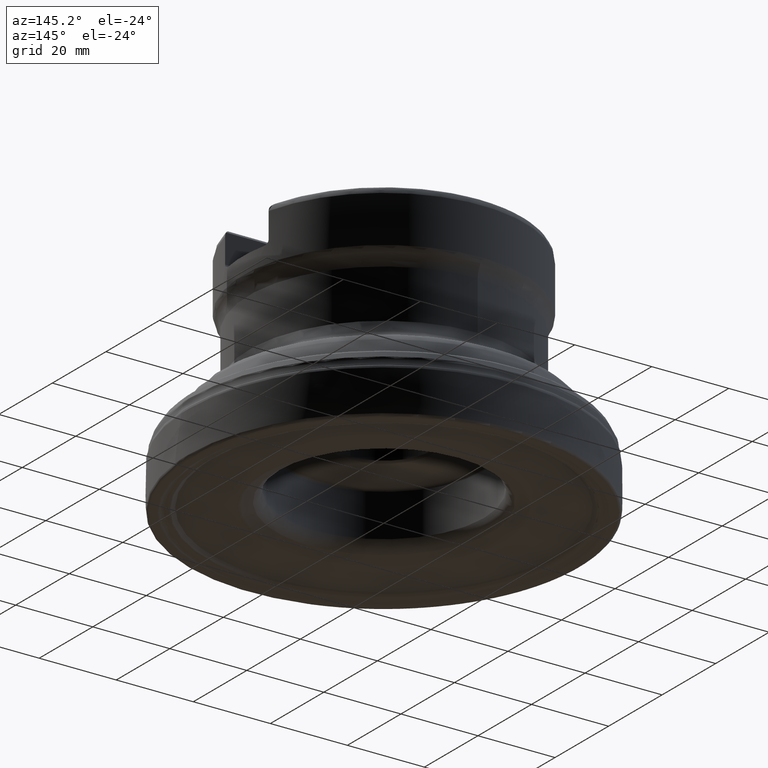
[diagram: clean part render]
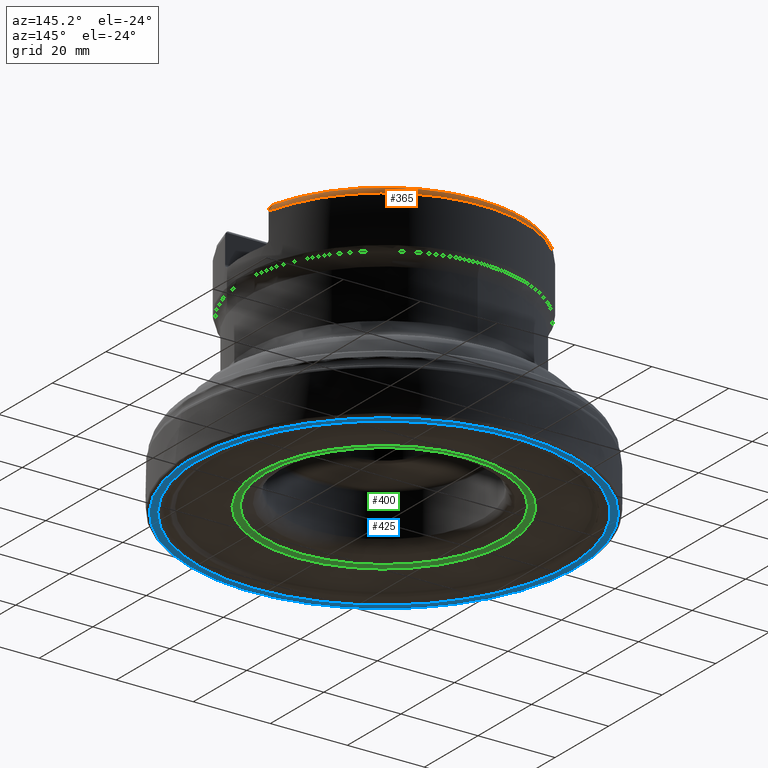
[diagram: same view with three faces highlighted in distinct colors, each labeled with its STEP entity id]
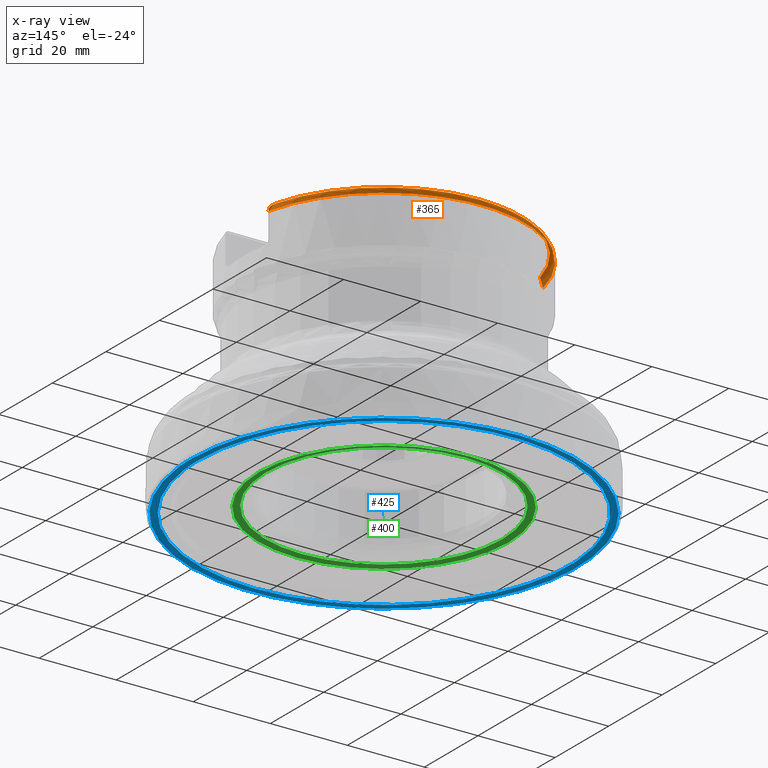
[diagram: x-ray of the same camera — body ghosted, the three highlighted faces saturated]
A machine part, auxiliary view with three faces highlighted in distinct colors.
The next image is the same camera in x-ray (body ghosted, the three faces saturated) — at least one of them is partly hidden behind the body in this view.
Their STEP definitions:

[orange] entity #365 — the highlighted toroidal blend (fillet) surface has major radius 34.5 mm and minor (blend) radius 2 mm.
#283=TOROIDAL_SURFACE('',#1181,34.5,2.);
#299=CIRCLE('',#1179,35.3717797887081);
#300=CIRCLE('',#1180,36.5);
#365=ADVANCED_FACE('',(#457),#283,.T.);
#457=FACE_OUTER_BOUND('',#479,.T.);
#479=EDGE_LOOP('',(#685,#686,#687,#688,#689,#690));
#685=ORIENTED_EDGE('',*,*,#1017,.T.);
#686=ORIENTED_EDGE('',*,*,#1018,.T.);
#687=ORIENTED_EDGE('',*,*,#1003,.F.);
#688=ORIENTED_EDGE('',*,*,#1019,.F.);
#689=ORIENTED_EDGE('',*,*,#1012,.F.);
#690=ORIENTED_EDGE('',*,*,#1020,.T.);
#907=VERTEX_POINT('',#1910);
#908=VERTEX_POINT('',#1911);
#916=VERTEX_POINT('',#1940);
#917=VERTEX_POINT('',#1948);
#921=VERTEX_POINT('',#1964);
#922=VERTEX_POINT('',#1965);
#1003=EDGE_CURVE('',#907,#908,#1134,.T.);
#1012=EDGE_CURVE('',#916,#917,#1138,.T.);
#1017=EDGE_CURVE('',#921,#922,#299,.T.);
#1018=EDGE_CURVE('',#922,#908,#1140,.T.);
#1019=EDGE_CURVE('',#917,#907,#300,.T.);
#1020=EDGE_CURVE('',#916,#921,#1141,.T.);
#1134=B_SPLINE_CURVE_WITH_KNOTS('',3,(#1903,#1904,#1905,#1906,#1907,#1908,
#1909),.UNSPECIFIED.,.F.,.F.,(4,3,4),(0.,0.630576899160705,1.),
 .UNSPECIFIED.);
#1138=B_SPLINE_CURVE_WITH_KNOTS('',3,(#1941,#1942,#1943,#1944,#1945,#1946,
#1947),.UNSPECIFIED.,.F.,.F.,(4,3,4),(0.,0.629880144461632,1.),
 .UNSPECIFIED.);
#1140=B_SPLINE_CURVE_WITH_KNOTS('',3,(#1966,#1967,#1968,#1969,#1970,#1971,
#1972),.UNSPECIFIED.,.F.,.F.,(4,3,4),(0.,0.64793426002431,1.),
 .UNSPECIFIED.);
#1141=B_SPLINE_CURVE_WITH_KNOTS('',3,(#1974,#1975,#1976,#1977,#1978,#1979,
#1980),.UNSPECIFIED.,.F.,.F.,(4,3,4),(0.,0.642020424361028,1.),
 .UNSPECIFIED.);
#1179=AXIS2_PLACEMENT_3D('',#1963,#1317,#1318);
#1180=AXIS2_PLACEMENT_3D('',#1973,#1319,#1320);
#1181=AXIS2_PLACEMENT_3D('',#1981,#1321,#1322);
#1317=DIRECTION('',(0.,-1.17145536458252E-15,-1.));
#1318=DIRECTION('',(0.,-1.,1.17702201224079E-15));
#1319=DIRECTION('',(0.,-1.17145536458252E-15,-1.));
#1320=DIRECTION('',(0.,-1.,1.14064009379297E-15));
#1321=DIRECTION('',(0.,1.17145536458252E-15,1.));
#1322=DIRECTION('',(0.,-1.,1.14064009379297E-15));
#1903=CARTESIAN_POINT('',(35.5807588451961,8.1400000000001,58.525));
#1904=CARTESIAN_POINT('',(35.5807588451961,8.1400000000001,58.7446019272531));
#1905=CARTESIAN_POINT('',(35.5425503138658,8.14000000000007,58.9672294953716));
#1906=CARTESIAN_POINT('',(35.4695986997269,8.14000000000007,59.1743600543141));
#1907=CARTESIAN_POINT('',(35.4267452303619,8.14000000000007,59.2960333464951));
#1908=CARTESIAN_POINT('',(35.371590119254,8.14000000000007,59.4140183509765));
#1909=CARTESIAN_POINT('',(35.3058338766041,8.14000000000007,59.5249999999972));
#1910=CARTESIAN_POINT('',(35.5807588451961,8.1400000000001,58.525));
#1911=CARTESIAN_POINT('',(35.3058338766041,8.14000000000007,59.5249999999972));
#1940=CARTESIAN_POINT('',(-35.3058338766025,8.14000000000007,59.525));
#1941=CARTESIAN_POINT('',(-35.3058338766025,8.14000000000007,59.525));
#1942=CARTESIAN_POINT('',(-35.4173503525129,8.14000000000007,59.3367854382988));
#1943=CARTESIAN_POINT('',(-35.4984084155812,8.14000000000007,59.12700934786));
#1944=CARTESIAN_POINT('',(-35.5418608339785,8.14000000000007,58.9125972843671));
#1945=CARTESIAN_POINT('',(-35.5676513600941,8.14000000000007,58.7853362451212));
#1946=CARTESIAN_POINT('',(-35.5807588451961,8.1400000000001,58.6548480779499));
#1947=CARTESIAN_POINT('',(-35.5807588451961,8.1400000000001,58.525));
#1948=CARTESIAN_POINT('',(-35.5807588451961,8.1400000000001,58.525));
#1963=CARTESIAN_POINT('',(0.,7.06680448684408E-14,60.325));
#1964=CARTESIAN_POINT('',(-34.2233722099512,8.94000000000007,60.325));
#1965=CARTESIAN_POINT('',(34.2233722099512,8.94000000000007,60.325));
#1966=CARTESIAN_POINT('',(34.2233722099512,8.94000000000007,60.325));
#1967=CARTESIAN_POINT('',(34.5154978725264,8.81803967293066,60.2030396729306));
#1968=CARTESIAN_POINT('',(34.7740297591576,8.65129117927731,60.0362911792772));
#1969=CARTESIAN_POINT('',(34.9883185967255,8.46532567227869,59.8503256722786));
#1970=CARTESIAN_POINT('',(35.1060208297466,8.363180569029,59.7481805690289));
#1971=CARTESIAN_POINT('',(35.2121064972438,8.25387764980934,59.6388776498065));
#1972=CARTESIAN_POINT('',(35.3058338766041,8.14000000000007,59.5249999999972));
#1973=CARTESIAN_POINT('',(0.,6.85594252121922E-14,58.525));
#1974=CARTESIAN_POINT('',(-35.3058338766025,8.14000000000007,59.525));
#1975=CARTESIAN_POINT('',(-35.1364130463715,8.34584429125276,59.7308442912527));
#1976=CARTESIAN_POINT('',(-34.9252281831583,8.53819443305015,59.9231944330501));
#1977=CARTESIAN_POINT('',(-34.6775118337811,8.69956941941736,60.0845694194173));
#1978=CARTESIAN_POINT('',(-34.5384308487862,8.79017382285667,60.1751738228566));
#1979=CARTESIAN_POINT('',(-34.386214905154,8.87201436603445,60.2570143660344));
#1980=CARTESIAN_POINT('',(-34.2233722099512,8.94000000000007,60.325));
#1981=CARTESIAN_POINT('',(0.,6.85594252121922E-14,58.525));

[blue] entity #425 — the highlighted face is a SurfaceOfRevolution surface.
#122=SURFACE_OF_REVOLUTION('',#628,#143);
#143=AXIS1_PLACEMENT('',#2393,#1547);
#261=FACE_BOUND('',#581,.T.);
#262=FACE_BOUND('',#582,.T.);
#352=CIRCLE('',#1282,48.2339384708555);
#353=CIRCLE('',#1283,50.0156585290299);
#425=ADVANCED_FACE('',(#261,#262),#122,.F.);
#581=EDGE_LOOP('',(#871));
#582=EDGE_LOOP('',(#872));
#628=LINE('',#2392,#655);
#655=VECTOR('',#1546,1.79261885988343);
#871=ORIENTED_EDGE('',*,*,#1096,.T.);
#872=ORIENTED_EDGE('',*,*,#1097,.F.);
#978=VERTEX_POINT('',#2383);
#979=VERTEX_POINT('',#2391);
#1096=EDGE_CURVE('',#978,#978,#352,.T.);
#1097=EDGE_CURVE('',#979,#979,#353,.T.);
#1282=AXIS2_PLACEMENT_3D('',#2382,#1541,#1542);
#1283=AXIS2_PLACEMENT_3D('',#2390,#1544,#1545);
#1541=DIRECTION('',(0.,0.,1.));
#1542=DIRECTION('',(1.,0.,0.));
#1544=DIRECTION('',(0.,0.,1.));
#1545=DIRECTION('',(1.,0.,0.));
#1546=DIRECTION('',(-0.999593469128227,0.00345161899845267,0.0283016395723834));
#1547=DIRECTION('',(0.,0.,1.));
#2382=CARTESIAN_POINT('',(0.,0.,0.0507340372776542));
#2383=CARTESIAN_POINT('',(48.2339384708555,0.,0.0507340372776542));
#2390=CARTESIAN_POINT('',(0.,0.,-2.68862827187537E-9));
#2391=CARTESIAN_POINT('',(50.0156585290299,0.,-2.68862827187537E-9));
#2392=CARTESIAN_POINT('',(49.7232953241602,-5.40000001841361,-2.68862827187537E-9));
#2393=CARTESIAN_POINT('',(0.,0.,0.));

[green] entity #400 — the highlighted toroidal blend (fillet) surface has major radius 32.3816 mm and minor (blend) radius 5 mm.
#223=FACE_BOUND('',#537,.T.);
#224=FACE_BOUND('',#538,.T.);
#290=TOROIDAL_SURFACE('',#1258,32.3816349035423,5.);
#307=CIRCLE('',#1190,30.671534186914);
#309=CIRCLE('',#1193,32.3816349035423);
#400=ADVANCED_FACE('',(#223,#224),#290,.T.);
#537=EDGE_LOOP('',(#805));
#538=EDGE_LOOP('',(#806));
#805=ORIENTED_EDGE('',*,*,#1033,.F.);
#806=ORIENTED_EDGE('',*,*,#1035,.F.);
#931=VERTEX_POINT('',#2077);
#933=VERTEX_POINT('',#2082);
#1033=EDGE_CURVE('',#931,#931,#307,.T.);
#1035=EDGE_CURVE('',#933,#933,#309,.T.);
#1190=AXIS2_PLACEMENT_3D('',#2076,#1339,#1340);
#1193=AXIS2_PLACEMENT_3D('',#2081,#1345,#1346);
#1258=AXIS2_PLACEMENT_3D('',#2252,#1483,#1484);
#1339=DIRECTION('',(0.,-1.17145536458252E-15,-1.));
#1340=DIRECTION('',(0.,-1.,1.17358042500125E-15));
#1345=DIRECTION('',(0.,1.17145536458252E-15,1.));
#1346=DIRECTION('',(0.,1.,-1.17187029469107E-15));
#1483=DIRECTION('',(0.,-1.17145536458252E-15,-1.));
#1484=DIRECTION('',(0.,1.,-1.16014419945315E-15));
#2076=CARTESIAN_POINT('',(0.,1.99327452493684E-15,1.70153689607046));
#2077=CARTESIAN_POINT('',(0.,-30.671534186914,1.7015368960705));
#2081=CARTESIAN_POINT('',(0.,1.64003751041553E-15,1.4));
#2082=CARTESIAN_POINT('',(0.,32.3816349035423,1.39999999999996));
#2252=CARTESIAN_POINT('',(0.,7.49731433332815E-15,6.4));